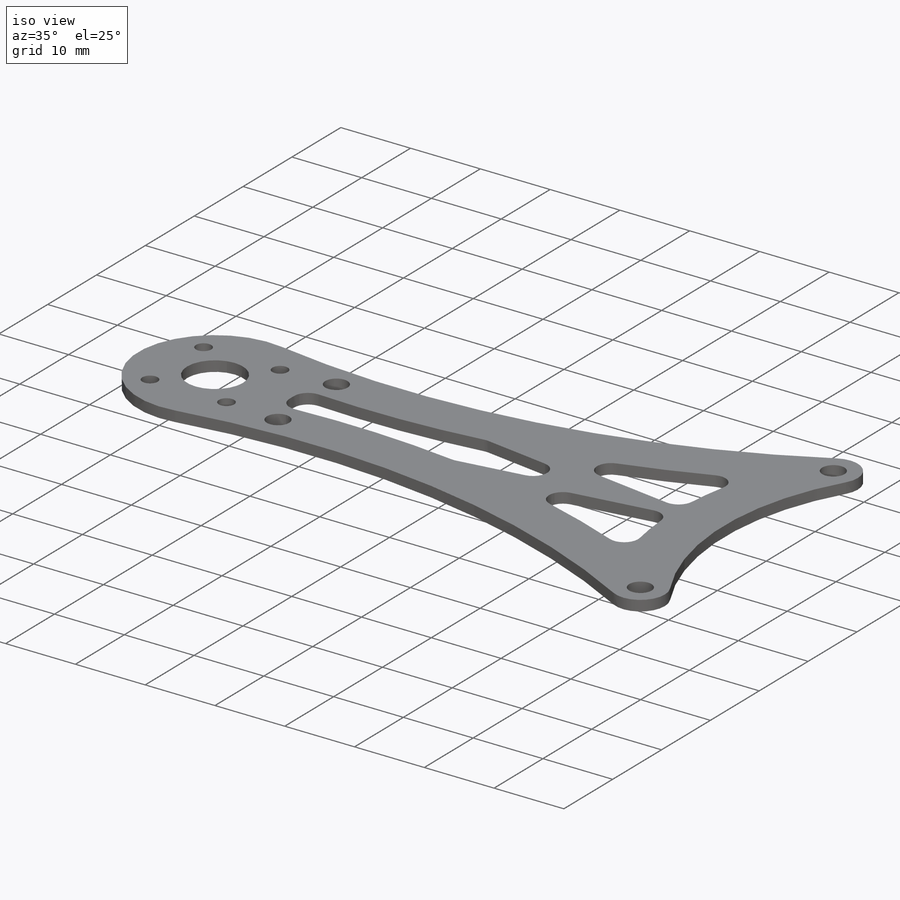
[diagram: iso view]
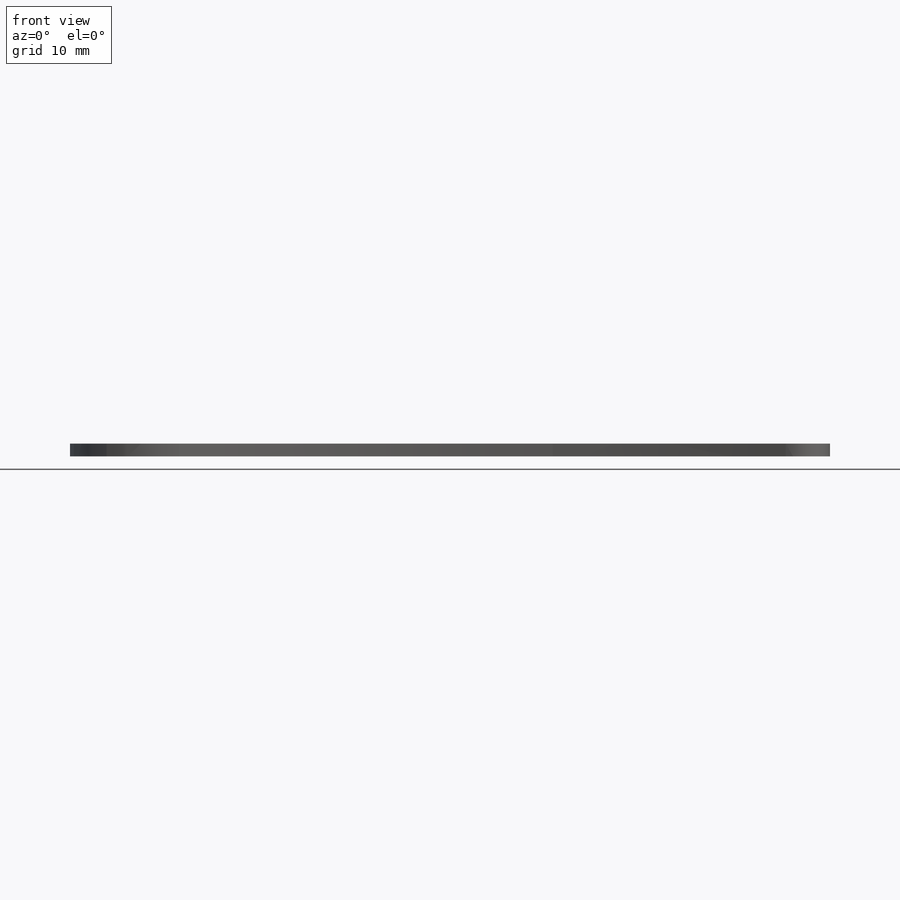
[diagram: front view]
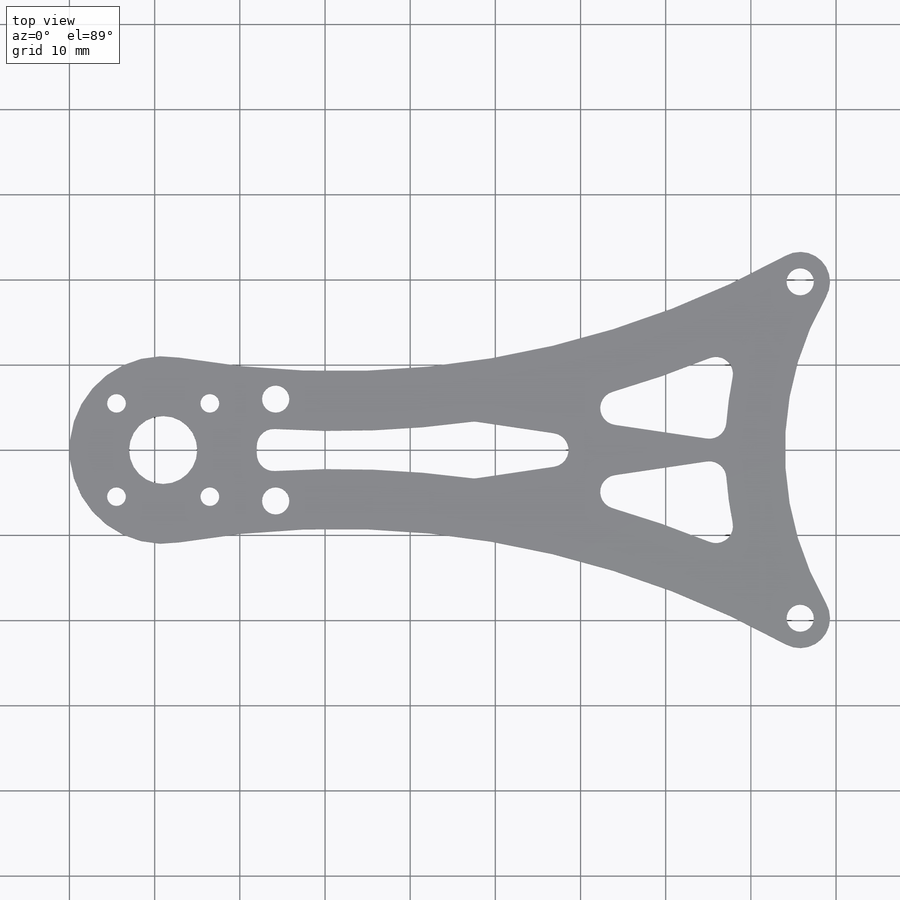
[diagram: top view]
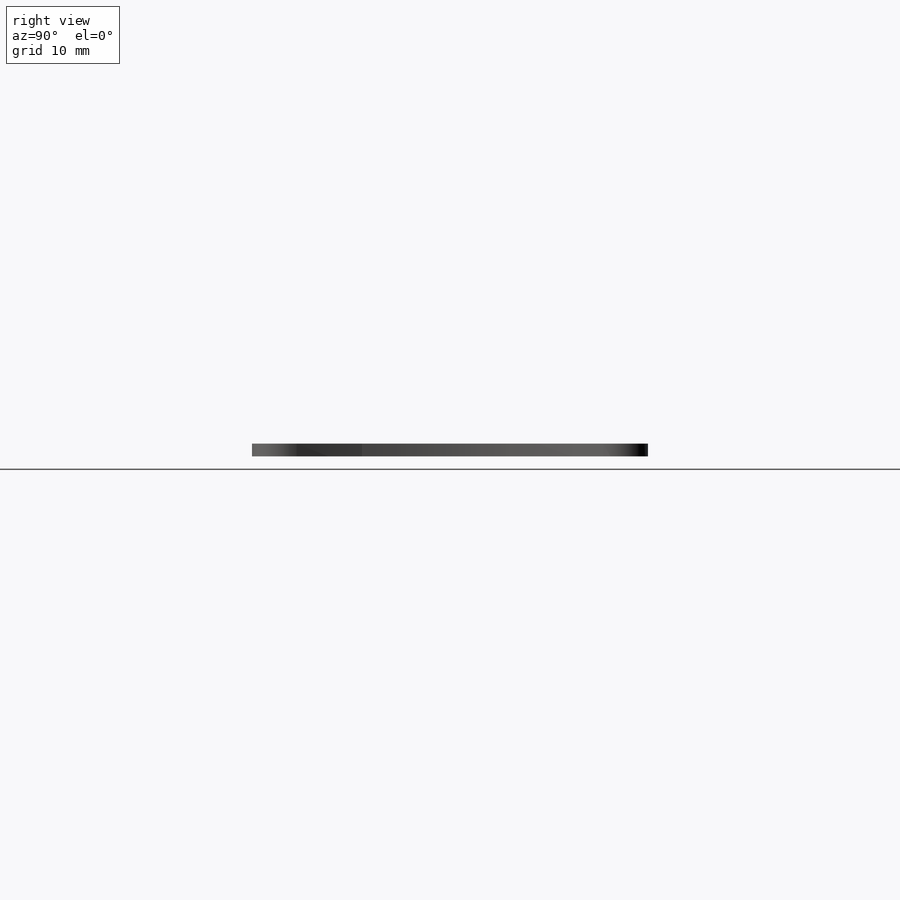
[diagram: right view]
SOLIDWORKS PART (.sldprt)
format: sldprt  version: not decoded by parser v0  size: 492,032 bytes
history: native  units: mm
features: sketch x7, hole x2, cut_extrude x2, material x1, extrude x1, fillet x1 (+13 scaffold rows collapsed)
feature tree (27):
  scaffold x13  (default folders/planes/origin — collapsed)
  material  "Thornel Mat VMA"
  sketch  "Sketch1"  dims[c1.D2=22.0mm c1.D3=86.0mm c1.D4=~56.669792mm c1.D7=109.0mm c1.D1=109.0mm c2.D4=7.0mm c2.D5=43.0mm c3.D5=30.0deg c3.D6=43.0mm c4.D6=30.0deg c4.D8=0.0mm]
  extrude  "Boss-Extrude1"  Depth=1.5mm
  hole  "Ø2.2 (2.2) Diameter Hole1"  Diameter=2.2mm Depth=1.5mm
  sketch  "Sketch3"  dims[D1=7.75mm D2=0.0mm]
  sketch  "Sketch2"  dims[hole-wizard template sketch: 60 standard entries collapsed; hole parameters kept: c18.Thru Hole Depth=1.5mm]
  hole  "Ø3.2 (3.2) Diameter Hole1"  Diameter=3.2mm Depth=10mm
  sketch  "Sketch5"  dims[D1=7.0mm]
  sketch  "Sketch4"  dims[hole-wizard template sketch: 50 standard entries collapsed; hole parameters above]
  sketch  "Sketch6"  dims[D1=7.0mm D2=7.0mm D3=7.0mm D4=1.0mm D5=1.0mm D6=1.0mm D7=1.0mm]
  cut_extrude  "Cut-Extrude1"  [1 undecoded]
  fillet  "Fillet1"  Radius=2mm
  sketch  "Sketch7"  dims[D1=8.0mm]
  cut_extrude  "Cut-Extrude2"  [1 undecoded]
decode coverage: 11 of 13 modeling features carry decoded parameters
note: ~ marks probable driven/reference dimensions
note: 2 parameter values undecoded
note: suppression state not decoded; provenance and decode notes live in map.json
